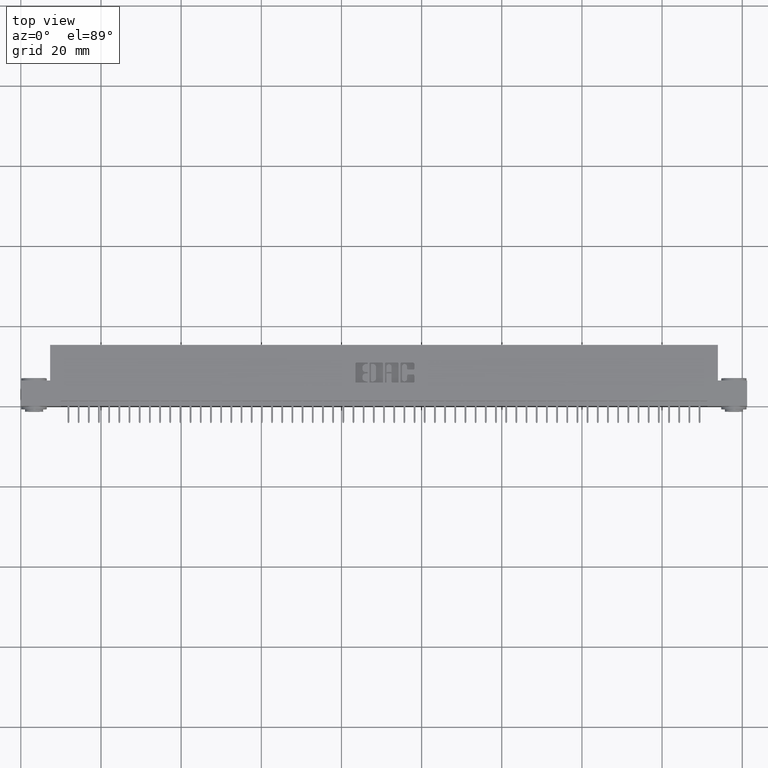
[diagram: clean part render]
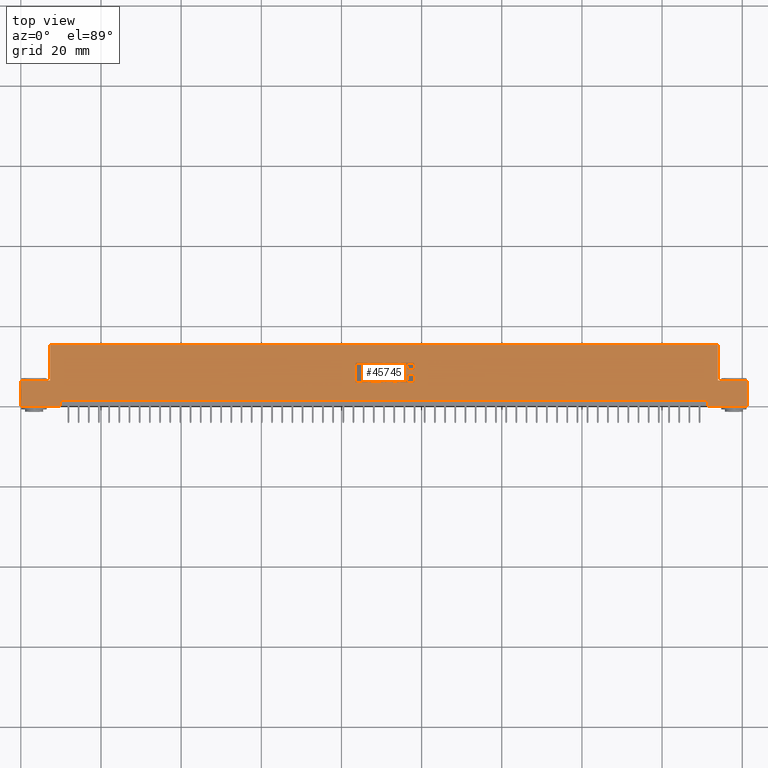
[diagram: same view with one face highlighted and labeled with its STEP entity id]
A machine part, top view. The second image highlights one B-rep face of the part: STEP entity #45745.
In plain terms, the highlighted planar face has unit normal (0, 0, -1).
Its self-contained STEP definition (entity closure, byte-faithful):
#61 = DIRECTION ( 'NONE',  ( -0.0000000000000000000, 0.0000000000000000000, 1.000000000000000000 ) ) ;
#263 = DIRECTION ( 'NONE',  ( -0.0000000000000000000, 0.0000000000000000000, 1.000000000000000000 ) ) ;
#282 = CARTESIAN_POINT ( 'NONE',  ( 3.854362961706166800, 0.3637718973050381200, 0.0000000000000000000 ) ) ;
#344 = DIRECTION ( 'NONE',  ( 1.000000000000000000, 0.0000000000000000000, 0.0000000000000000000 ) ) ;
#456 = DIRECTION ( 'NONE',  ( -1.000000000000000000, -0.0000000000000000000, -0.0000000000000000000 ) ) ;
#507 = CARTESIAN_POINT ( 'NONE',  ( 3.407504575677997600, 0.2337142671046474100, 0.0000000000000000000 ) ) ;
#638 = VECTOR ( 'NONE', #29442, 39.37007874015748100 ) ;
#708 = DIRECTION ( 'NONE',  ( -0.0000000000000000000, 0.0000000000000000000, 1.000000000000000000 ) ) ;
#750 = ORIENTED_EDGE ( 'NONE', *, *, #36887, .T. ) ;
#865 = LINE ( 'NONE', #2636, #2003 ) ;
#905 = CARTESIAN_POINT ( 'NONE',  ( 3.387137060005125400, 0.4094147637527351700, 0.0000000000000000000 ) ) ;
#930 = CARTESIAN_POINT ( 'NONE',  ( 3.400633606415414300, 0.2268432979619851900, 0.0000000000000000000 ) ) ;
#1045 = DIRECTION ( 'NONE',  ( -0.0000000000000000000, 0.0000000000000000000, 1.000000000000000000 ) ) ;
#1059 = VECTOR ( 'NONE', #41541, 39.37007874015748100 ) ;
#1074 = ORIENTED_EDGE ( 'NONE', *, *, #19920, .F. ) ;
#1199 = EDGE_CURVE ( 'NONE', #34497, #2968, #35497, .T. ) ;
#1378 = VERTEX_POINT ( 'NONE', #4594 ) ;
#1421 = VERTEX_POINT ( 'NONE', #27446 ) ;
#1533 = ORIENTED_EDGE ( 'NONE', *, *, #19184, .F. ) ;
#1551 = DIRECTION ( 'NONE',  ( 0.0000000000000000000, 1.000000000000000000, -0.0000000000000000000 ) ) ;
#1601 = VECTOR ( 'NONE', #46690, 39.37007874015748100 ) ;
#1739 = ORIENTED_EDGE ( 'NONE', *, *, #23221, .T. ) ;
#1814 = ORIENTED_EDGE ( 'NONE', *, *, #42954, .F. ) ;
#1840 = EDGE_CURVE ( 'NONE', #13526, #1995, #2253, .T. ) ;
#1867 = CARTESIAN_POINT ( 'NONE',  ( 3.728722383097458500, 0.0000000000000000000, 0.0000000000000000000 ) ) ;
#1991 = DIRECTION ( 'NONE',  ( -0.0000000000000000000, 0.0000000000000000000, 1.000000000000000000 ) ) ;
#1995 = VERTEX_POINT ( 'NONE', #29336 ) ;
#2003 = VECTOR ( 'NONE', #17631, 39.37007874015748100 ) ;
#2004 = AXIS2_PLACEMENT_3D ( 'NONE', #29803, #33635, #11718 ) ;
#2127 = VERTEX_POINT ( 'NONE', #19263 ) ;
#2157 = CARTESIAN_POINT ( 'NONE',  ( 3.728722383097458500, 0.2366589681657894100, 0.0000000000000000000 ) ) ;
#2188 = CARTESIAN_POINT ( 'NONE',  ( 3.433270709962976200, 0.2366589681657894100, 0.0000000000000000000 ) ) ;
#2252 = CARTESIAN_POINT ( 'NONE',  ( 3.576088711428330800, 0.2337142671046474100, 0.0000000000000000000 ) ) ;
#2253 = LINE ( 'NONE', #5438, #12591 ) ;
#2346 = DIRECTION ( 'NONE',  ( 1.000000000000000000, 0.0000000000000000000, 0.0000000000000000000 ) ) ;
#2600 = ORIENTED_EDGE ( 'NONE', *, *, #19246, .F. ) ;
#2607 = ORIENTED_EDGE ( 'NONE', *, *, #4201, .F. ) ;
#2636 = CARTESIAN_POINT ( 'NONE',  ( 3.642344485303985000, 0.0000000000000000000, 0.0000000000000000000 ) ) ;
#2660 = CIRCLE ( 'NONE', #19771, 0.009815670203803066700 ) ;
#2662 = VERTEX_POINT ( 'NONE', #13391 ) ;
#2750 = VERTEX_POINT ( 'NONE', #27527 ) ;
#2800 = CIRCLE ( 'NONE', #27188, 0.009815670203796511200 ) ;
#2919 = CARTESIAN_POINT ( 'NONE',  ( 3.632528815100188000, 0.3083133606535522500, 0.0000000000000000000 ) ) ;
#2930 = EDGE_CURVE ( 'NONE', #29691, #35080, #9292, .T. ) ;
#2958 = VERTEX_POINT ( 'NONE', #20774 ) ;
#2968 = VERTEX_POINT ( 'NONE', #16917 ) ;
#3098 = ORIENTED_EDGE ( 'NONE', *, *, #21425, .F. ) ;
#3278 = DIRECTION ( 'NONE',  ( 1.000000000000000000, 0.0000000000000000000, 0.0000000000000000000 ) ) ;
#3358 = CARTESIAN_POINT ( 'NONE',  ( 3.558911288571669400, 0.2366589681657894100, 0.0000000000000000000 ) ) ;
#3459 = VECTOR ( 'NONE', #20836, 39.37007874015748100 ) ;
#3528 = VERTEX_POINT ( 'NONE', #14143 ) ;
#3590 = DIRECTION ( 'NONE',  ( 1.000000000000000000, 0.0000000000000000000, 0.0000000000000000000 ) ) ;
#3592 = CARTESIAN_POINT ( 'NONE',  ( 3.728722383097458500, 0.4133410318342096200, 0.0000000000000000000 ) ) ;
#3632 = VECTOR ( 'NONE', #43935, 39.37007874015748100 ) ;
#3728 = DIRECTION ( 'NONE',  ( 1.000000000000000000, 0.0000000000000000000, 0.0000000000000000000 ) ) ;
#3748 = DIRECTION ( 'NONE',  ( 0.0000000000000000000, 1.000000000000000000, -0.0000000000000000000 ) ) ;
#4008 = CARTESIAN_POINT ( 'NONE',  ( 3.794978156973178900, 0.2668421540424524800, 0.0000000000000000000 ) ) ;
#4087 = VERTEX_POINT ( 'NONE', #32578 ) ;
#4115 = FACE_BOUND ( 'NONE', #27083, .T. ) ;
#4119 = VECTOR ( 'NONE', #38405, 39.37007874015748100 ) ;
#4139 = DIRECTION ( 'NONE',  ( -0.0000000000000000000, 0.0000000000000000000, 1.000000000000000000 ) ) ;
#4157 = DIRECTION ( 'NONE',  ( 1.000000000000000000, 0.0000000000000000000, 0.0000000000000000000 ) ) ;
#4201 = EDGE_CURVE ( 'NONE', #2750, #6957, #18948, .T. ) ;
#4303 = CARTESIAN_POINT ( 'NONE',  ( 3.599646319917450200, 0.3181290308573481200, 0.0000000000000000000 ) ) ;
#4433 = EDGE_CURVE ( 'NONE', #39258, #25636, #24059, .T. ) ;
#4544 = DIRECTION ( 'NONE',  ( 1.000000000000000000, 0.0000000000000000000, 0.0000000000000000000 ) ) ;
#4594 = CARTESIAN_POINT ( 'NONE',  ( 3.355726915352927900, 0.2867188862052000300, 0.0000000000000000000 ) ) ;
#4636 = CIRCLE ( 'NONE', #34025, 0.009815670203795418300 ) ;
#4706 = CARTESIAN_POINT ( 'NONE',  ( 3.549095618367827900, 0.4133410318342094500, 0.0000000000000000000 ) ) ;
#4715 = ORIENTED_EDGE ( 'NONE', *, *, #46082, .F. ) ;
#4783 = ORIENTED_EDGE ( 'NONE', *, *, #24651, .F. ) ;
#4917 = CARTESIAN_POINT ( 'NONE',  ( 3.738538053301299500, 0.4133410318342096200, 0.0000000000000000000 ) ) ;
#4959 = CARTESIAN_POINT ( 'NONE',  ( 0.0000000000000000000, 0.3063502266127570200, 0.0000000000000000000 ) ) ;
#4998 = EDGE_CURVE ( 'NONE', #20678, #27399, #8052, .T. ) ;
#5284 = VECTOR ( 'NONE', #24933, 39.37007874015748100 ) ;
#5320 = AXIS2_PLACEMENT_3D ( 'NONE', #26727, #37473, #19212 ) ;
#5355 = CARTESIAN_POINT ( 'NONE',  ( 3.400633606535310400, 0.3318709691426833300, 0.0000000000000000000 ) ) ;
#5438 = CARTESIAN_POINT ( 'NONE',  ( 0.0000000000000000000, 0.4231567020380505000, 0.0000000000000000000 ) ) ;
#5559 = DIRECTION ( 'NONE',  ( -0.0000000000000000000, 0.0000000000000000000, 1.000000000000000000 ) ) ;
#5682 = CARTESIAN_POINT ( 'NONE',  ( 3.742464321382818600, 0.3831578459575290500, 0.0000000000000000000 ) ) ;
#5727 = EDGE_CURVE ( 'NONE', #39915, #7146, #26854, .T. ) ;
#5733 = EDGE_CURVE ( 'NONE', #42203, #25636, #19417, .T. ) ;
#5994 = CARTESIAN_POINT ( 'NONE',  ( 3.355726915352909700, 0.3780046191005192500, 0.0000000000000000000 ) ) ;
#6125 = AXIS2_PLACEMENT_3D ( 'NONE', #18351, #8139, #40756 ) ;
#6139 = ORIENTED_EDGE ( 'NONE', *, *, #33425, .F. ) ;
#6273 = LINE ( 'NONE', #18317, #29173 ) ;
#6300 = VERTEX_POINT ( 'NONE', #30772 ) ;
#6397 = VERTEX_POINT ( 'NONE', #2252 ) ;
#6440 = AXIS2_PLACEMENT_3D ( 'NONE', #29677, #12638, #34266 ) ;
#6476 = LINE ( 'NONE', #8380, #17949 ) ;
#6524 = ORIENTED_EDGE ( 'NONE', *, *, #18358, .F. ) ;
#6681 = CARTESIAN_POINT ( 'NONE',  ( 3.296342110619918200, 0.2268432979619844400, 0.0000000000000000000 ) ) ;
#6722 = EDGE_CURVE ( 'NONE', #9240, #12139, #7870, .T. ) ;
#6851 = ORIENTED_EDGE ( 'NONE', *, *, #27960, .T. ) ;
#6854 = VERTEX_POINT ( 'NONE', #930 ) ;
#6935 = AXIS2_PLACEMENT_3D ( 'NONE', #36313, #39351, #10371 ) ;
#6957 = VERTEX_POINT ( 'NONE', #13241 ) ;
#7042 = VECTOR ( 'NONE', #19062, 39.37007874015748100 ) ;
#7060 = VERTEX_POINT ( 'NONE', #14019 ) ;
#7095 = AXIS2_PLACEMENT_3D ( 'NONE', #22678, #44703, #8121 ) ;
#7143 = VECTOR ( 'NONE', #10275, 39.37007874015748100 ) ;
#7146 = VERTEX_POINT ( 'NONE', #46332 ) ;
#7342 = CARTESIAN_POINT ( 'NONE',  ( 6.847499999999999300, 0.2500000000000000000, 0.0000000000000000000 ) ) ;
#7548 = CARTESIAN_POINT ( 'NONE',  ( 3.576088711428330800, 0.4133410318342096200, 0.0000000000000000000 ) ) ;
#7565 = CARTESIAN_POINT ( 'NONE',  ( 6.742500000000000600, 0.05000000000000000300, 0.0000000000000000000 ) ) ;
#7610 = EDGE_CURVE ( 'NONE', #44977, #19190, #27175, .T. ) ;
#7722 = CARTESIAN_POINT ( 'NONE',  ( 3.400633606535351300, 0.4094147637527351700, 0.0000000000000000000 ) ) ;
#7740 = LINE ( 'NONE', #11262, #35777 ) ;
#7755 = ORIENTED_EDGE ( 'NONE', *, *, #42809, .F. ) ;
#7870 = LINE ( 'NONE', #25923, #26152 ) ;
#7971 = ORIENTED_EDGE ( 'NONE', *, *, #36649, .F. ) ;
#8029 = AXIS2_PLACEMENT_3D ( 'NONE', #30486, #263, #344 ) ;
#8052 = CIRCLE ( 'NONE', #39601, 0.009815670203805252500 ) ;
#8100 = EDGE_CURVE ( 'NONE', #22500, #34528, #23407, .T. ) ;
#8121 = DIRECTION ( 'NONE',  ( 1.000000000000000000, 0.0000000000000000000, 0.0000000000000000000 ) ) ;
#8127 = CARTESIAN_POINT ( 'NONE',  ( 3.407504575677973600, 0.3250000000000198300, 0.0000000000000000000 ) ) ;
#8139 = DIRECTION ( 'NONE',  ( 0.0000000000000000000, 0.0000000000000000000, -1.000000000000000000 ) ) ;
#8206 = LINE ( 'NONE', #23067, #7042 ) ;
#8380 = CARTESIAN_POINT ( 'NONE',  ( 0.0000000000000000000, 0.4231567020380505000, 0.0000000000000000000 ) ) ;
#8403 = DIRECTION ( 'NONE',  ( -0.0000000000000000000, 0.0000000000000000000, 1.000000000000000000 ) ) ;
#8521 = EDGE_CURVE ( 'NONE', #40507, #39677, #35972, .T. ) ;
#8714 = LINE ( 'NONE', #7342, #9864 ) ;
#8721 = EDGE_CURVE ( 'NONE', #19003, #12240, #32464, .T. ) ;
#8724 = FACE_BOUND ( 'NONE', #16727, .T. ) ;
#9071 = VERTEX_POINT ( 'NONE', #47250 ) ;
#9128 = DIRECTION ( 'NONE',  ( -1.000000000000000000, 0.0000000000000000000, 0.0000000000000000000 ) ) ;
#9136 = AXIS2_PLACEMENT_3D ( 'NONE', #17775, #21325, #43841 ) ;
#9190 = EDGE_CURVE ( 'NONE', #19166, #38354, #2660, .T. ) ;
#9240 = VERTEX_POINT ( 'NONE', #7565 ) ;
#9277 = CIRCLE ( 'NONE', #5320, 0.009815670203806891800 ) ;
#9292 = CIRCLE ( 'NONE', #24756, 0.009815670203806891800 ) ;
#9400 = DIRECTION ( 'NONE',  ( 1.000000000000000000, 0.0000000000000000000, 0.0000000000000000000 ) ) ;
#9422 = CARTESIAN_POINT ( 'NONE',  ( 0.0000000000000000000, 0.0000000000000000000, 0.0000000000000000000 ) ) ;
#9491 = CIRCLE ( 'NONE', #14322, 0.009815670203840221000 ) ;
#9513 = DIRECTION ( 'NONE',  ( 1.000000000000000000, -0.0000000000000000000, -0.0000000000000000000 ) ) ;
#9676 = AXIS2_PLACEMENT_3D ( 'NONE', #39352, #46183, #31507 ) ;
#9795 = ORIENTED_EDGE ( 'NONE', *, *, #43316, .F. ) ;
#9835 = CIRCLE ( 'NONE', #24954, 0.03141014465215583000 ) ;
#9864 = VECTOR ( 'NONE', #22221, 39.37007874015748100 ) ;
#9881 = DIRECTION ( 'NONE',  ( -0.0000000000000000000, 0.0000000000000000000, 1.000000000000000000 ) ) ;
#9938 = LINE ( 'NONE', #25409, #3632 ) ;
#9994 = VECTOR ( 'NONE', #14614, 39.37007874015748100 ) ;
#10196 = VECTOR ( 'NONE', #19902, 39.37007874015748100 ) ;
#10270 = CIRCLE ( 'NONE', #22106, 0.009815670203806345400 ) ;
#10275 = DIRECTION ( 'NONE',  ( -1.000000000000000000, -1.189163988687022500E-013, 0.0000000000000000000 ) ) ;
#10371 = DIRECTION ( 'NONE',  ( 1.000000000000000000, 0.0000000000000000000, 0.0000000000000000000 ) ) ;
#10382 = ORIENTED_EDGE ( 'NONE', *, *, #11108, .F. ) ;
#10505 = VERTEX_POINT ( 'NONE', #10627 ) ;
#10627 = CARTESIAN_POINT ( 'NONE',  ( 0.2874999999999999800, 0.5999999999999999800, 0.0000000000000000000 ) ) ;
#10655 = VERTEX_POINT ( 'NONE', #33340 ) ;
#10868 = EDGE_CURVE ( 'NONE', #29020, #26460, #6476, .T. ) ;
#11056 = VECTOR ( 'NONE', #39193, 39.37007874015748100 ) ;
#11108 = EDGE_CURVE ( 'NONE', #23498, #32421, #40225, .T. ) ;
#11135 = ORIENTED_EDGE ( 'NONE', *, *, #4433, .F. ) ;
#11188 = DIRECTION ( 'NONE',  ( 1.000000000000000000, 0.0000000000000000000, 0.0000000000000000000 ) ) ;
#11229 = AXIS2_PLACEMENT_3D ( 'NONE', #43991, #32348, #36050 ) ;
#11262 = CARTESIAN_POINT ( 'NONE',  ( 0.0000000000000000000, 0.5999999999999999800, 0.0000000000000000000 ) ) ;
#11531 = CARTESIAN_POINT ( 'NONE',  ( -0.0000000000000000000, 0.3181290308573562800, 0.0000000000000000000 ) ) ;
#11639 = EDGE_CURVE ( 'NONE', #27399, #23843, #13273, .T. ) ;
#11646 = EDGE_CURVE ( 'NONE', #6854, #24194, #34502, .T. ) ;
#11671 = CIRCLE ( 'NONE', #24631, 0.009815670203787768200 ) ;
#11673 = ORIENTED_EDGE ( 'NONE', *, *, #31550, .F. ) ;
#11688 = VECTOR ( 'NONE', #35366, 39.37007874015748100 ) ;
#11718 = DIRECTION ( 'NONE',  ( 1.000000000000000000, 0.0000000000000000000, 0.0000000000000000000 ) ) ;
#11971 = LINE ( 'NONE', #37283, #25699 ) ;
#12139 = VERTEX_POINT ( 'NONE', #27141 ) ;
#12240 = VERTEX_POINT ( 'NONE', #20747 ) ;
#12382 = VECTOR ( 'NONE', #14233, 39.37007874015748100 ) ;
#12502 = EDGE_CURVE ( 'NONE', #4087, #19166, #35539, .T. ) ;
#12548 = VERTEX_POINT ( 'NONE', #45669 ) ;
#12591 = VECTOR ( 'NONE', #9128, 39.37007874015748100 ) ;
#12638 = DIRECTION ( 'NONE',  ( -0.0000000000000000000, 0.0000000000000000000, 1.000000000000000000 ) ) ;
#12663 = ORIENTED_EDGE ( 'NONE', *, *, #40806, .F. ) ;
#12737 = DIRECTION ( 'NONE',  ( 1.000000000000000000, 0.0000000000000000000, 0.0000000000000000000 ) ) ;
#12758 = DIRECTION ( 'NONE',  ( 0.0000000000000000000, -1.000000000000000000, 0.0000000000000000000 ) ) ;
#12814 = CARTESIAN_POINT ( 'NONE',  ( -0.0000000000000000000, 0.3539562271012330900, 0.0000000000000000000 ) ) ;
#12861 = DIRECTION ( 'NONE',  ( -0.0000000000000000000, 0.0000000000000000000, 1.000000000000000000 ) ) ;
#13021 = VERTEX_POINT ( 'NONE', #33211 ) ;
#13175 = CARTESIAN_POINT ( 'NONE',  ( 3.549095618367896300, 0.4231567020380505000, 0.0000000000000000000 ) ) ;
#13187 = EDGE_CURVE ( 'NONE', #36422, #16190, #2800, .T. ) ;
#13219 = LINE ( 'NONE', #40585, #35575 ) ;
#13241 = CARTESIAN_POINT ( 'NONE',  ( 3.400633606535351300, 0.4231567020380321800, 0.0000000000000000000 ) ) ;
#13273 = LINE ( 'NONE', #43461, #5284 ) ;
#13391 = CARTESIAN_POINT ( 'NONE',  ( 3.701729290037013800, 0.4231567020380060400, 0.0000000000000000000 ) ) ;
#13437 = DIRECTION ( 'NONE',  ( 1.000000000000000000, 0.0000000000000000000, 0.0000000000000000000 ) ) ;
#13526 = VERTEX_POINT ( 'NONE', #43048 ) ;
#13580 = CIRCLE ( 'NONE', #2004, 0.006870969142663458500 ) ;
#13640 = DIRECTION ( 'NONE',  ( 1.000000000000000000, 0.0000000000000000000, 0.0000000000000000000 ) ) ;
#13872 = LINE ( 'NONE', #24323, #11056 ) ;
#14019 = CARTESIAN_POINT ( 'NONE',  ( 3.794978156973166000, 0.3637718973050446700, 0.0000000000000000000 ) ) ;
#14143 = CARTESIAN_POINT ( 'NONE',  ( 6.847499999999999300, 0.2500000000000000000, 0.0000000000000000000 ) ) ;
#14163 = DIRECTION ( 'NONE',  ( -0.0000000000000000000, 0.0000000000000000000, 1.000000000000000000 ) ) ;
#14184 = VECTOR ( 'NONE', #4157, 39.37007874015748100 ) ;
#14226 = AXIS2_PLACEMENT_3D ( 'NONE', #34555, #23545, #19839 ) ;
#14233 = DIRECTION ( 'NONE',  ( 1.000000000000000000, 0.0000000000000000000, 0.0000000000000000000 ) ) ;
#14283 = EDGE_CURVE ( 'NONE', #12139, #34528, #11971, .T. ) ;
#14322 = AXIS2_PLACEMENT_3D ( 'NONE', #40395, #61, #3590 ) ;
#14398 = EDGE_CURVE ( 'NONE', #42638, #30821, #44014, .T. ) ;
#14443 = ORIENTED_EDGE ( 'NONE', *, *, #28110, .T. ) ;
#14561 = ORIENTED_EDGE ( 'NONE', *, *, #19241, .T. ) ;
#14579 = DIRECTION ( 'NONE',  ( 1.000000000000000000, 0.0000000000000000000, 0.0000000000000000000 ) ) ;
#14614 = DIRECTION ( 'NONE',  ( 0.0000000000000000000, -1.000000000000000000, 0.0000000000000000000 ) ) ;
#14700 = CARTESIAN_POINT ( 'NONE',  ( 3.738538053301265300, 0.2366589681657894100, 0.0000000000000000000 ) ) ;
#14736 = DIRECTION ( 'NONE',  ( -0.0000000000000000000, 0.0000000000000000000, 1.000000000000000000 ) ) ;
#14794 = VERTEX_POINT ( 'NONE', #44052 ) ;
#14926 = ORIENTED_EDGE ( 'NONE', *, *, #2930, .F. ) ;
#14951 = ORIENTED_EDGE ( 'NONE', *, *, #20940, .F. ) ;
#15004 = PLANE ( 'NONE',  #6125 ) ;
#15196 = DIRECTION ( 'NONE',  ( 1.000000000000000000, 0.0000000000000000000, 0.0000000000000000000 ) ) ;
#15214 = CARTESIAN_POINT ( 'NONE',  ( 3.794978156973178900, 0.2965345564089681400, 0.0000000000000000000 ) ) ;
#15228 = ORIENTED_EDGE ( 'NONE', *, *, #9190, .T. ) ;
#15343 = AXIS2_PLACEMENT_3D ( 'NONE', #19963, #41718, #12737 ) ;
#15420 = CARTESIAN_POINT ( 'NONE',  ( 3.742464321382818600, 0.2668421540424524800, 0.0000000000000000000 ) ) ;
#15454 = LINE ( 'NONE', #38918, #37253 ) ;
#15461 = CIRCLE ( 'NONE', #15343, 0.02625691779517995400 ) ;
#15504 = EDGE_CURVE ( 'NONE', #7060, #10655, #28496, .T. ) ;
#15522 = VECTOR ( 'NONE', #43295, 39.37007874015748100 ) ;
#15699 = CARTESIAN_POINT ( 'NONE',  ( 0.3924999999999996800, 0.0000000000000000000, 0.0000000000000000000 ) ) ;
#15778 = CARTESIAN_POINT ( 'NONE',  ( -0.0000000000000000000, 0.2268432979619826600, 0.0000000000000000000 ) ) ;
#15808 = VECTOR ( 'NONE', #26263, 39.37007874015748100 ) ;
#15820 = CIRCLE ( 'NONE', #9136, 0.009815670203805798900 ) ;
#15829 = ORIENTED_EDGE ( 'NONE', *, *, #13187, .F. ) ;
#16041 = CIRCLE ( 'NONE', #47172, 0.009815670203806891800 ) ;
#16083 = VECTOR ( 'NONE', #22169, 39.37007874015748100 ) ;
#16138 = CARTESIAN_POINT ( 'NONE',  ( 3.585904381632127400, 0.4231567020380060400, 0.0000000000000000000 ) ) ;
#16172 = EDGE_CURVE ( 'NONE', #35080, #2958, #37023, .T. ) ;
#16190 = VERTEX_POINT ( 'NONE', #7548 ) ;
#16403 = CARTESIAN_POINT ( 'NONE',  ( -1.123269580619305600E-014, 0.3181290308572210000, 0.0000000000000000000 ) ) ;
#16462 = ORIENTED_EDGE ( 'NONE', *, *, #15504, .F. ) ;
#16556 = EDGE_CURVE ( 'NONE', #40728, #21916, #40396, .T. ) ;
#16630 = DIRECTION ( 'NONE',  ( 0.0000000000000000000, 1.000000000000000000, -0.0000000000000000000 ) ) ;
#16689 = LINE ( 'NONE', #31431, #34441 ) ;
#16727 = EDGE_LOOP ( 'NONE', ( #1739, #4715, #34127, #30519, #43202, #38930, #14443, #45341, #19546, #15228, #42198, #41219, #18252, #15829 ) ) ;
#16762 = EDGE_CURVE ( 'NONE', #24194, #23724, #36981, .T. ) ;
#16777 = CARTESIAN_POINT ( 'NONE',  ( 3.558911288571669400, 0.0000000000000000000, 0.0000000000000000000 ) ) ;
#16795 = CIRCLE ( 'NONE', #42283, 0.006870969142657995000 ) ;
#16917 = CARTESIAN_POINT ( 'NONE',  ( 3.711544960240806400, 0.2366589681657803300, 0.0000000000000000000 ) ) ;
#17031 = CARTESIAN_POINT ( 'NONE',  ( 3.864178631909972200, 0.4133410318341942900, 0.0000000000000000000 ) ) ;
#17149 = DIRECTION ( 'NONE',  ( 1.000000000000000000, 0.0000000000000000000, 0.0000000000000000000 ) ) ;
#17163 = VERTEX_POINT ( 'NONE', #5994 ) ;
#17391 = LINE ( 'NONE', #24153, #19116 ) ;
#17421 = VECTOR ( 'NONE', #42146, 39.37007874015748100 ) ;
#17597 = CARTESIAN_POINT ( 'NONE',  ( 0.0000000000000000000, 0.3318709691426833300, 0.0000000000000000000 ) ) ;
#17631 = DIRECTION ( 'NONE',  ( 0.0000000000000000000, 1.000000000000000000, -0.0000000000000000000 ) ) ;
#17775 = CARTESIAN_POINT ( 'NONE',  ( 3.296342110619922200, 0.2366589681657894100, 0.0000000000000000000 ) ) ;
#17825 = LINE ( 'NONE', #11531, #40752 ) ;
#17949 = VECTOR ( 'NONE', #34601, 39.37007874015748100 ) ;
#18011 = LINE ( 'NONE', #46768, #21478 ) ;
#18018 = DIRECTION ( 'NONE',  ( 1.000000000000000000, 7.203446383881635600E-015, 0.0000000000000000000 ) ) ;
#18054 = VECTOR ( 'NONE', #16630, 39.37007874015748100 ) ;
#18252 = ORIENTED_EDGE ( 'NONE', *, *, #40025, .T. ) ;
#18317 = CARTESIAN_POINT ( 'NONE',  ( 3.355726915352909700, 0.0000000000000000000, 0.0000000000000000000 ) ) ;
#18351 = CARTESIAN_POINT ( 'NONE',  ( 0.0000000000000000000, 0.5999999999999999800, 0.0000000000000000000 ) ) ;
#18358 = EDGE_CURVE ( 'NONE', #6300, #44977, #11671, .T. ) ;
#18376 = EDGE_CURVE ( 'NONE', #45880, #2968, #17391, .T. ) ;
#18413 = ORIENTED_EDGE ( 'NONE', *, *, #4998, .F. ) ;
#18431 = ORIENTED_EDGE ( 'NONE', *, *, #5727, .F. ) ;
#18453 = VERTEX_POINT ( 'NONE', #28992 ) ;
#18498 = ORIENTED_EDGE ( 'NONE', *, *, #5733, .T. ) ;
#18526 = DIRECTION ( 'NONE',  ( -0.0000000000000000000, -1.000000000000000000, -0.0000000000000000000 ) ) ;
#18557 = CARTESIAN_POINT ( 'NONE',  ( 3.599646319917450200, 0.3083133606535450300, 0.0000000000000000000 ) ) ;
#18569 = ORIENTED_EDGE ( 'NONE', *, *, #27410, .T. ) ;
#18724 = DIRECTION ( 'NONE',  ( 1.000000000000000000, 0.0000000000000000000, 0.0000000000000000000 ) ) ;
#18770 = CIRCLE ( 'NONE', #29587, 0.009815670203797057700 ) ;
#18912 = ORIENTED_EDGE ( 'NONE', *, *, #29888, .F. ) ;
#18948 = CIRCLE ( 'NONE', #7095, 0.006870969142648706400 ) ;
#18994 = DIRECTION ( 'NONE',  ( -0.0000000000000000000, -1.000000000000000000, -0.0000000000000000000 ) ) ;
#19003 = VERTEX_POINT ( 'NONE', #3358 ) ;
#19030 = EDGE_CURVE ( 'NONE', #9240, #39282, #19072, .T. ) ;
#19062 = DIRECTION ( 'NONE',  ( -1.000000000000000000, 0.0000000000000000000, 0.0000000000000000000 ) ) ;
#19072 = LINE ( 'NONE', #47308, #30502 ) ;
#19116 = VECTOR ( 'NONE', #12758, 39.37007874015748100 ) ;
#19126 = ORIENTED_EDGE ( 'NONE', *, *, #6722, .F. ) ;
#19158 = CARTESIAN_POINT ( 'NONE',  ( 3.711544960240806400, 0.4133410318342004600, 0.0000000000000000000 ) ) ;
#19166 = VERTEX_POINT ( 'NONE', #4303 ) ;
#19184 = EDGE_CURVE ( 'NONE', #13021, #9071, #34494, .T. ) ;
#19190 = VERTEX_POINT ( 'NONE', #4008 ) ;
#19212 = DIRECTION ( 'NONE',  ( 1.000000000000000000, 0.0000000000000000000, 0.0000000000000000000 ) ) ;
#19241 = EDGE_CURVE ( 'NONE', #39929, #47139, #40777, .T. ) ;
#19246 = EDGE_CURVE ( 'NONE', #2958, #19003, #9277, .T. ) ;
#19263 = CARTESIAN_POINT ( 'NONE',  ( 3.864178631909940300, 0.2366589681657824400, 0.0000000000000000000 ) ) ;
#19341 = DIRECTION ( 'NONE',  ( -0.0000000000000000000, 0.0000000000000000000, 1.000000000000000000 ) ) ;
#19392 = EDGE_CURVE ( 'NONE', #39282, #18453, #21320, .T. ) ;
#19417 = CIRCLE ( 'NONE', #43567, 0.02625691779517339700 ) ;
#19546 = ORIENTED_EDGE ( 'NONE', *, *, #12502, .T. ) ;
#19631 = EDGE_CURVE ( 'NONE', #39929, #1378, #27020, .T. ) ;
#19669 = ORIENTED_EDGE ( 'NONE', *, *, #41424, .F. ) ;
#19771 = AXIS2_PLACEMENT_3D ( 'NONE', #18557, #40639, #18724 ) ;
#19839 = DIRECTION ( 'NONE',  ( 1.000000000000000000, 0.0000000000000000000, 0.0000000000000000000 ) ) ;
#19845 = EDGE_CURVE ( 'NONE', #20326, #1378, #9835, .T. ) ;
#19902 = DIRECTION ( 'NONE',  ( 1.000000000000000000, 0.0000000000000000000, 0.0000000000000000000 ) ) ;
#19920 = EDGE_CURVE ( 'NONE', #42872, #18453, #13219, .T. ) ;
#19963 = CARTESIAN_POINT ( 'NONE',  ( 3.768721239177998500, 0.2668421540424524800, 0.0000000000000000000 ) ) ;
#20326 = VERTEX_POINT ( 'NONE', #33212 ) ;
#20571 = DIRECTION ( 'NONE',  ( 1.000000000000000000, 0.0000000000000000000, 0.0000000000000000000 ) ) ;
#20588 = CARTESIAN_POINT ( 'NONE',  ( 3.701729290037011600, 0.4133410318342098400, 0.0000000000000000000 ) ) ;
#20678 = VERTEX_POINT ( 'NONE', #28039 ) ;
#20747 = CARTESIAN_POINT ( 'NONE',  ( 3.558911288571669400, 0.4133410318342096200, 0.0000000000000000000 ) ) ;
#20769 = FACE_BOUND ( 'NONE', #25115, .T. ) ;
#20774 = CARTESIAN_POINT ( 'NONE',  ( 3.549095618367861700, 0.2268432979619826600, 0.0000000000000000000 ) ) ;
#20836 = DIRECTION ( 'NONE',  ( -1.000000000000000000, 0.0000000000000000000, 0.0000000000000000000 ) ) ;
#20940 = EDGE_CURVE ( 'NONE', #23724, #47139, #40297, .T. ) ;
#21022 = ORIENTED_EDGE ( 'NONE', *, *, #47028, .F. ) ;
#21052 = ORIENTED_EDGE ( 'NONE', *, *, #40471, .F. ) ;
#21100 = ORIENTED_EDGE ( 'NONE', *, *, #16762, .F. ) ;
#21146 = ORIENTED_EDGE ( 'NONE', *, *, #22108, .F. ) ;
#21170 = CARTESIAN_POINT ( 'NONE',  ( 3.423455039759169000, 0.2366589681657894100, 0.0000000000000000000 ) ) ;
#21221 = EDGE_CURVE ( 'NONE', #37795, #6300, #42159, .T. ) ;
#21255 = AXIS2_PLACEMENT_3D ( 'NONE', #39131, #12861, #20571 ) ;
#21320 = LINE ( 'NONE', #9422, #4119 ) ;
#21325 = DIRECTION ( 'NONE',  ( -0.0000000000000000000, 0.0000000000000000000, 1.000000000000000000 ) ) ;
#21425 = EDGE_CURVE ( 'NONE', #39677, #2750, #32435, .T. ) ;
#21478 = VECTOR ( 'NONE', #18018, 39.37007874015748100 ) ;
#21486 = LINE ( 'NONE', #44168, #9994 ) ;
#21643 = DIRECTION ( 'NONE',  ( 1.000000000000000000, 0.0000000000000000000, 0.0000000000000000000 ) ) ;
#21793 = CARTESIAN_POINT ( 'NONE',  ( 3.589830649713647000, 0.2337142671046474100, 0.0000000000000000000 ) ) ;
#21809 = DIRECTION ( 'NONE',  ( 0.0000000000000000000, 1.000000000000000000, -0.0000000000000000000 ) ) ;
#21875 = LINE ( 'NONE', #17597, #3459 ) ;
#21916 = VERTEX_POINT ( 'NONE', #24097 ) ;
#21920 = EDGE_CURVE ( 'NONE', #26460, #25677, #26669, .T. ) ;
#21956 = ORIENTED_EDGE ( 'NONE', *, *, #8100, .T. ) ;
#22106 = AXIS2_PLACEMENT_3D ( 'NONE', #32407, #14163, #39771 ) ;
#22108 = EDGE_CURVE ( 'NONE', #42203, #7060, #21486, .T. ) ;
#22112 = DIRECTION ( 'NONE',  ( -1.000000000000000000, 0.0000000000000000000, 0.0000000000000000000 ) ) ;
#22169 = DIRECTION ( 'NONE',  ( 1.000000000000000000, 0.0000000000000000000, 0.0000000000000000000 ) ) ;
#22221 = DIRECTION ( 'NONE',  ( -0.0000000000000000000, 1.000000000000000000, -0.0000000000000000000 ) ) ;
#22344 = CARTESIAN_POINT ( 'NONE',  ( 6.742500000000000600, 0.0000000000000000000, 0.0000000000000000000 ) ) ;
#22404 = ORIENTED_EDGE ( 'NONE', *, *, #23437, .T. ) ;
#22423 = CARTESIAN_POINT ( 'NONE',  ( 3.864178631909940300, 0.2965345564089699200, 0.0000000000000000000 ) ) ;
#22431 = CIRCLE ( 'NONE', #21255, 0.009815670203822736800 ) ;
#22485 = FACE_BOUND ( 'NONE', #36495, .T. ) ;
#22494 = ORIENTED_EDGE ( 'NONE', *, *, #7610, .F. ) ;
#22500 = VERTEX_POINT ( 'NONE', #30446 ) ;
#22678 = CARTESIAN_POINT ( 'NONE',  ( 3.400633606535351300, 0.4162857328953857300, 0.0000000000000000000 ) ) ;
#22907 = VERTEX_POINT ( 'NONE', #22423 ) ;
#23067 = CARTESIAN_POINT ( 'NONE',  ( 0.0000000000000000000, 0.2268432979619841000, 0.0000000000000000000 ) ) ;
#23125 = DIRECTION ( 'NONE',  ( 1.000000000000000000, 0.0000000000000000000, 0.0000000000000000000 ) ) ;
#23171 = ORIENTED_EDGE ( 'NONE', *, *, #19631, .F. ) ;
#23221 = EDGE_CURVE ( 'NONE', #36422, #2662, #13872, .T. ) ;
#23331 = LINE ( 'NONE', #12814, #38203 ) ;
#23407 = LINE ( 'NONE', #45770, #10196 ) ;
#23437 = EDGE_CURVE ( 'NONE', #3528, #43274, #8714, .T. ) ;
#23447 = ORIENTED_EDGE ( 'NONE', *, *, #30883, .F. ) ;
#23498 = VERTEX_POINT ( 'NONE', #44230 ) ;
#23505 = ORIENTED_EDGE ( 'NONE', *, *, #19030, .T. ) ;
#23545 = DIRECTION ( 'NONE',  ( -0.0000000000000000000, 0.0000000000000000000, 1.000000000000000000 ) ) ;
#23724 = VERTEX_POINT ( 'NONE', #45644 ) ;
#23843 = VERTEX_POINT ( 'NONE', #17031 ) ;
#23984 = VERTEX_POINT ( 'NONE', #36246 ) ;
#24059 = LINE ( 'NONE', #43681, #32614 ) ;
#24065 = CIRCLE ( 'NONE', #31613, 0.009815670203841313900 ) ;
#24097 = CARTESIAN_POINT ( 'NONE',  ( 3.387137060005084100, 0.3318709691426833300, 0.0000000000000000000 ) ) ;
#24118 = CARTESIAN_POINT ( 'NONE',  ( 3.423455039759169000, 0.4133410318342096200, 0.0000000000000000000 ) ) ;
#24153 = CARTESIAN_POINT ( 'NONE',  ( 3.711544960240806400, 0.0000000000000000000, 0.0000000000000000000 ) ) ;
#24169 = EDGE_CURVE ( 'NONE', #1421, #12548, #30979, .T. ) ;
#24194 = VERTEX_POINT ( 'NONE', #507 ) ;
#24282 = AXIS2_PLACEMENT_3D ( 'NONE', #31637, #35179, #9400 ) ;
#24323 = CARTESIAN_POINT ( 'NONE',  ( -0.0000000000000000000, 0.4231567020380060400, 0.0000000000000000000 ) ) ;
#24544 = CARTESIAN_POINT ( 'NONE',  ( 6.847499999999999300, 0.5999999999999999800, 0.0000000000000000000 ) ) ;
#24567 = LINE ( 'NONE', #43041, #1601 ) ;
#24631 = AXIS2_PLACEMENT_3D ( 'NONE', #42039, #5559, #34866 ) ;
#24651 = EDGE_CURVE ( 'NONE', #46063, #21916, #21875, .T. ) ;
#24756 = AXIS2_PLACEMENT_3D ( 'NONE', #2188, #9881, #2346 ) ;
#24826 = VERTEX_POINT ( 'NONE', #21793 ) ;
#24933 = DIRECTION ( 'NONE',  ( 0.0000000000000000000, 1.000000000000000000, -0.0000000000000000000 ) ) ;
#24954 = AXIS2_PLACEMENT_3D ( 'NONE', #26351, #708, #33244 ) ;
#25115 = EDGE_LOOP ( 'NONE', ( #1814, #37783, #2600, #37123, #14926, #19669, #34945, #36774 ) ) ;
#25229 = DIRECTION ( 'NONE',  ( -0.0000000000000000000, 0.0000000000000000000, 1.000000000000000000 ) ) ;
#25364 = ORIENTED_EDGE ( 'NONE', *, *, #11639, .F. ) ;
#25409 = CARTESIAN_POINT ( 'NONE',  ( 0.0000000000000000000, 0.5999999999999999800, 0.0000000000000000000 ) ) ;
#25421 = CARTESIAN_POINT ( 'NONE',  ( 3.589830649713647000, 0.3083133606535450300, 0.0000000000000000000 ) ) ;
#25636 = VERTEX_POINT ( 'NONE', #5682 ) ;
#25677 = VERTEX_POINT ( 'NONE', #24118 ) ;
#25699 = VECTOR ( 'NONE', #18526, 39.37007874015748100 ) ;
#25767 = DIRECTION ( 'NONE',  ( 1.000000000000000000, 0.0000000000000000000, 0.0000000000000000000 ) ) ;
#25779 = DIRECTION ( 'NONE',  ( 0.0000000000000000000, -1.000000000000000000, 0.0000000000000000000 ) ) ;
#25877 = LINE ( 'NONE', #40802, #638 ) ;
#25923 = CARTESIAN_POINT ( 'NONE',  ( 0.3924999999999996800, 0.05000000000000000300, 0.0000000000000000000 ) ) ;
#26043 = ORIENTED_EDGE ( 'NONE', *, *, #29954, .F. ) ;
#26152 = VECTOR ( 'NONE', #456, 39.37007874015748100 ) ;
#26263 = DIRECTION ( 'NONE',  ( -1.000000000000000000, 0.0000000000000000000, 0.0000000000000000000 ) ) ;
#26351 = CARTESIAN_POINT ( 'NONE',  ( 3.387137060005084100, 0.2867188862052000300, 0.0000000000000000000 ) ) ;
#26460 = VERTEX_POINT ( 'NONE', #40197 ) ;
#26669 = CIRCLE ( 'NONE', #32665, 0.009815670203840767500 ) ;
#26727 = CARTESIAN_POINT ( 'NONE',  ( 3.549095618367861700, 0.2366589681657894100, 0.0000000000000000000 ) ) ;
#26854 = LINE ( 'NONE', #15778, #1059 ) ;
#27020 = LINE ( 'NONE', #35984, #15522 ) ;
#27083 = EDGE_LOOP ( 'NONE', ( #6851, #47219, #29973, #4783, #29455, #10382, #18912, #28920, #23171, #14561, #14951, #21100, #41385, #40355, #9795, #1533, #23447, #21022, #2607, #3098, #28784 ) ) ;
#27141 = CARTESIAN_POINT ( 'NONE',  ( 0.3924999999999996800, 0.05000000000000000300, 0.0000000000000000000 ) ) ;
#27175 = LINE ( 'NONE', #27745, #17421 ) ;
#27188 = AXIS2_PLACEMENT_3D ( 'NONE', #34156, #8403, #23125 ) ;
#27399 = VERTEX_POINT ( 'NONE', #34214 ) ;
#27410 = EDGE_CURVE ( 'NONE', #39258, #19190, #15461, .T. ) ;
#27442 = DIRECTION ( 'NONE',  ( -0.0000000000000000000, 0.0000000000000000000, 1.000000000000000000 ) ) ;
#27446 = CARTESIAN_POINT ( 'NONE',  ( 0.0000000000000000000, 0.2500000000000000000, 0.0000000000000000000 ) ) ;
#27527 = CARTESIAN_POINT ( 'NONE',  ( 3.407504575677999800, 0.4162857328953857300, 0.0000000000000000000 ) ) ;
#27572 = ORIENTED_EDGE ( 'NONE', *, *, #1840, .F. ) ;
#27745 = CARTESIAN_POINT ( 'NONE',  ( 3.794978156973178900, 0.0000000000000000000, 0.0000000000000000000 ) ) ;
#27863 = VERTEX_POINT ( 'NONE', #3592 ) ;
#27960 = EDGE_CURVE ( 'NONE', #40507, #17163, #31791, .T. ) ;
#28009 = DIRECTION ( 'NONE',  ( -0.0000000000000000000, 1.000000000000000000, -0.0000000000000000000 ) ) ;
#28039 = CARTESIAN_POINT ( 'NONE',  ( 3.854362961706166800, 0.3539562271012330300, 0.0000000000000000000 ) ) ;
#28110 = EDGE_CURVE ( 'NONE', #42638, #23984, #865, .T. ) ;
#28390 = ORIENTED_EDGE ( 'NONE', *, *, #14283, .F. ) ;
#28481 = EDGE_CURVE ( 'NONE', #30349, #6854, #18011, .T. ) ;
#28496 = CIRCLE ( 'NONE', #8029, 0.009815670203811809700 ) ;
#28784 = ORIENTED_EDGE ( 'NONE', *, *, #8521, .F. ) ;
#28920 = ORIENTED_EDGE ( 'NONE', *, *, #19845, .T. ) ;
#28992 = CARTESIAN_POINT ( 'NONE',  ( 7.135000000000000700, 0.0000000000000000000, 0.0000000000000000000 ) ) ;
#29020 = VERTEX_POINT ( 'NONE', #13175 ) ;
#29173 = VECTOR ( 'NONE', #3748, 39.37007874015748100 ) ;
#29336 = CARTESIAN_POINT ( 'NONE',  ( 3.738538053301299500, 0.4231567020380505000, 0.0000000000000000000 ) ) ;
#29442 = DIRECTION ( 'NONE',  ( 0.0000000000000000000, 1.000000000000000000, -0.0000000000000000000 ) ) ;
#29451 = CARTESIAN_POINT ( 'NONE',  ( 3.582959680570987300, 0.2337142671046474100, 0.0000000000000000000 ) ) ;
#29455 = ORIENTED_EDGE ( 'NONE', *, *, #34504, .F. ) ;
#29587 = AXIS2_PLACEMENT_3D ( 'NONE', #2919, #46421, #46569 ) ;
#29677 = CARTESIAN_POINT ( 'NONE',  ( 3.387137060005125400, 0.3780046191005192500, 0.0000000000000000000 ) ) ;
#29691 = VERTEX_POINT ( 'NONE', #21170 ) ;
#29803 = CARTESIAN_POINT ( 'NONE',  ( 3.400633606535310400, 0.3250000000000198300, 0.0000000000000000000 ) ) ;
#29888 = EDGE_CURVE ( 'NONE', #20326, #23498, #17825, .T. ) ;
#29954 = EDGE_CURVE ( 'NONE', #2127, #22907, #25877, .T. ) ;
#29973 = ORIENTED_EDGE ( 'NONE', *, *, #16556, .T. ) ;
#30086 = CARTESIAN_POINT ( 'NONE',  ( 3.286526440416115400, 0.0000000000000000000, 0.0000000000000000000 ) ) ;
#30325 = AXIS2_PLACEMENT_3D ( 'NONE', #4706, #45162, #4544 ) ;
#30349 = VERTEX_POINT ( 'NONE', #6681 ) ;
#30374 = DIRECTION ( 'NONE',  ( 0.0000000000000000000, -1.000000000000000000, 0.0000000000000000000 ) ) ;
#30446 = CARTESIAN_POINT ( 'NONE',  ( 0.0000000000000000000, 0.0000000000000000000, 0.0000000000000000000 ) ) ;
#30486 = CARTESIAN_POINT ( 'NONE',  ( 3.804793827176977700, 0.3637718973050446700, 0.0000000000000000000 ) ) ;
#30502 = VECTOR ( 'NONE', #43350, 39.37007874015748100 ) ;
#30519 = ORIENTED_EDGE ( 'NONE', *, *, #1199, .F. ) ;
#30535 = DIRECTION ( 'NONE',  ( -1.000000000000000000, -3.530861605407645300E-014, 0.0000000000000000000 ) ) ;
#30772 = CARTESIAN_POINT ( 'NONE',  ( 3.804793827176966600, 0.3063502266127570200, 0.0000000000000000000 ) ) ;
#30821 = VERTEX_POINT ( 'NONE', #34493 ) ;
#30883 = EDGE_CURVE ( 'NONE', #14794, #13021, #22431, .T. ) ;
#30979 = LINE ( 'NONE', #41005, #16083 ) ;
#30992 = EDGE_CURVE ( 'NONE', #3528, #42872, #16689, .T. ) ;
#31240 = LINE ( 'NONE', #38581, #18054 ) ;
#31431 = CARTESIAN_POINT ( 'NONE',  ( 7.135000000000000700, 0.2500000000000000000, 0.0000000000000000000 ) ) ;
#31507 = DIRECTION ( 'NONE',  ( 1.000000000000000000, 0.0000000000000000000, 0.0000000000000000000 ) ) ;
#31550 = EDGE_CURVE ( 'NONE', #12548, #10505, #15454, .T. ) ;
#31584 = VECTOR ( 'NONE', #25779, 39.37007874015748100 ) ;
#31613 = AXIS2_PLACEMENT_3D ( 'NONE', #4917, #1991, #45673 ) ;
#31637 = CARTESIAN_POINT ( 'NONE',  ( 3.387137060005084100, 0.3632811137948578400, 0.0000000000000000000 ) ) ;
#31791 = CIRCLE ( 'NONE', #6440, 0.03141014465221592800 ) ;
#32181 = FACE_OUTER_BOUND ( 'NONE', #38324, .T. ) ;
#32263 = LINE ( 'NONE', #36521, #33982 ) ;
#32348 = DIRECTION ( 'NONE',  ( -0.0000000000000000000, 0.0000000000000000000, 1.000000000000000000 ) ) ;
#32402 = CARTESIAN_POINT ( 'NONE',  ( 3.642344485303985000, 0.2366589681657873000, 0.0000000000000000000 ) ) ;
#32407 = CARTESIAN_POINT ( 'NONE',  ( 3.854362961706133900, 0.2366589681657894100, 0.0000000000000000000 ) ) ;
#32421 = VERTEX_POINT ( 'NONE', #8127 ) ;
#32435 = CIRCLE ( 'NONE', #9676, 0.006870969142648706400 ) ;
#32464 = LINE ( 'NONE', #16777, #38229 ) ;
#32578 = CARTESIAN_POINT ( 'NONE',  ( 3.632528815100188000, 0.3181290308573492800, 0.0000000000000000000 ) ) ;
#32614 = VECTOR ( 'NONE', #21809, 39.37007874015748100 ) ;
#32665 = AXIS2_PLACEMENT_3D ( 'NONE', #46418, #35608, #13640 ) ;
#32904 = EDGE_CURVE ( 'NONE', #23984, #4087, #18770, .T. ) ;
#33211 = CARTESIAN_POINT ( 'NONE',  ( 3.286526440416115400, 0.4133410318342096200, 0.0000000000000000000 ) ) ;
#33212 = CARTESIAN_POINT ( 'NONE',  ( 3.387137060005084100, 0.3181290308573562800, 0.0000000000000000000 ) ) ;
#33244 = DIRECTION ( 'NONE',  ( 1.000000000000000000, 0.0000000000000000000, 0.0000000000000000000 ) ) ;
#33299 = CARTESIAN_POINT ( 'NONE',  ( -0.0000000000000000000, 0.4094147637527351700, 0.0000000000000000000 ) ) ;
#33340 = CARTESIAN_POINT ( 'NONE',  ( 3.804793827176977700, 0.3539562271012330900, 0.0000000000000000000 ) ) ;
#33425 = EDGE_CURVE ( 'NONE', #10655, #20678, #23331, .T. ) ;
#33635 = DIRECTION ( 'NONE',  ( -0.0000000000000000000, 0.0000000000000000000, 1.000000000000000000 ) ) ;
#33982 = VECTOR ( 'NONE', #22112, 39.37007874015748100 ) ;
#34025 = AXIS2_PLACEMENT_3D ( 'NONE', #20588, #27442, #46124 ) ;
#34082 = CARTESIAN_POINT ( 'NONE',  ( 3.387137060005109400, 0.2405852362473080700, 0.0000000000000000000 ) ) ;
#34119 = CARTESIAN_POINT ( 'NONE',  ( 3.701729290037010700, 0.2268432979619841000, 0.0000000000000000000 ) ) ;
#34127 = ORIENTED_EDGE ( 'NONE', *, *, #18376, .T. ) ;
#34156 = CARTESIAN_POINT ( 'NONE',  ( 3.585904381632127400, 0.4133410318342096200, 0.0000000000000000000 ) ) ;
#34191 = CARTESIAN_POINT ( 'NONE',  ( 3.433270709962976200, 0.2268432979619826600, 0.0000000000000000000 ) ) ;
#34214 = CARTESIAN_POINT ( 'NONE',  ( 3.864178631909972200, 0.3637718973050381200, 0.0000000000000000000 ) ) ;
#34220 = DIRECTION ( 'NONE',  ( 1.000000000000000000, 0.0000000000000000000, 0.0000000000000000000 ) ) ;
#34266 = DIRECTION ( 'NONE',  ( 1.000000000000000000, 0.0000000000000000000, 0.0000000000000000000 ) ) ;
#34441 = VECTOR ( 'NONE', #9513, 39.37007874015748100 ) ;
#34493 = CARTESIAN_POINT ( 'NONE',  ( 3.652160155507786100, 0.2268432979619841000, 0.0000000000000000000 ) ) ;
#34494 = LINE ( 'NONE', #30086, #31584 ) ;
#34497 = VERTEX_POINT ( 'NONE', #34119 ) ;
#34502 = CIRCLE ( 'NONE', #6935, 0.006870969142662365600 ) ;
#34504 = EDGE_CURVE ( 'NONE', #32421, #46063, #13580, .T. ) ;
#34528 = VERTEX_POINT ( 'NONE', #15699 ) ;
#34555 = CARTESIAN_POINT ( 'NONE',  ( 3.387137060005109400, 0.2719953808994898800, 0.0000000000000000000 ) ) ;
#34601 = DIRECTION ( 'NONE',  ( -1.000000000000000000, 0.0000000000000000000, 0.0000000000000000000 ) ) ;
#34866 = DIRECTION ( 'NONE',  ( 1.000000000000000000, 0.0000000000000000000, 0.0000000000000000000 ) ) ;
#34945 = ORIENTED_EDGE ( 'NONE', *, *, #21920, .F. ) ;
#35080 = VERTEX_POINT ( 'NONE', #34191 ) ;
#35179 = DIRECTION ( 'NONE',  ( -0.0000000000000000000, 0.0000000000000000000, 1.000000000000000000 ) ) ;
#35262 = CARTESIAN_POINT ( 'NONE',  ( 3.854362961706153000, 0.2965345564089699200, 0.0000000000000000000 ) ) ;
#35366 = DIRECTION ( 'NONE',  ( 0.0000000000000000000, -1.000000000000000000, 0.0000000000000000000 ) ) ;
#35497 = CIRCLE ( 'NONE', #11229, 0.009815670203795964800 ) ;
#35539 = LINE ( 'NONE', #16403, #43512 ) ;
#35575 = VECTOR ( 'NONE', #18994, 39.37007874015748100 ) ;
#35608 = DIRECTION ( 'NONE',  ( -0.0000000000000000000, 0.0000000000000000000, 1.000000000000000000 ) ) ;
#35777 = VECTOR ( 'NONE', #3728, 39.37007874015748100 ) ;
#35972 = LINE ( 'NONE', #33299, #14184 ) ;
#35984 = CARTESIAN_POINT ( 'NONE',  ( 3.355726915352927900, 0.0000000000000000000, 0.0000000000000000000 ) ) ;
#36037 = EDGE_CURVE ( 'NONE', #22907, #37795, #47151, .T. ) ;
#36050 = DIRECTION ( 'NONE',  ( 1.000000000000000000, 0.0000000000000000000, 0.0000000000000000000 ) ) ;
#36089 = LINE ( 'NONE', #38214, #42929 ) ;
#36141 = CARTESIAN_POINT ( 'NONE',  ( 3.854362961706156600, 0.3063502266127570200, 0.0000000000000000000 ) ) ;
#36246 = CARTESIAN_POINT ( 'NONE',  ( 3.642344485303985000, 0.3083133606535429200, 0.0000000000000000000 ) ) ;
#36313 = CARTESIAN_POINT ( 'NONE',  ( 3.400633606535335300, 0.2337142671046474100, 0.0000000000000000000 ) ) ;
#36376 = CARTESIAN_POINT ( 'NONE',  ( -2.860952991545795400E-014, 0.2405852362469053100, 0.0000000000000000000 ) ) ;
#36422 = VERTEX_POINT ( 'NONE', #16138 ) ;
#36495 = EDGE_LOOP ( 'NONE', ( #18413, #6139, #16462, #21146, #18498, #11135, #18569, #22494, #6524, #38420, #41860, #26043, #12663, #18431, #44933, #7971, #21052, #27572, #7755, #25364 ) ) ;
#36521 = CARTESIAN_POINT ( 'NONE',  ( 0.0000000000000000000, 0.4231567020380321800, 0.0000000000000000000 ) ) ;
#36649 = EDGE_CURVE ( 'NONE', #27863, #38837, #46524, .T. ) ;
#36671 = CARTESIAN_POINT ( 'NONE',  ( -0.0000000000000000000, 0.2268432979619826600, 0.0000000000000000000 ) ) ;
#36774 = ORIENTED_EDGE ( 'NONE', *, *, #10868, .F. ) ;
#36887 = EDGE_CURVE ( 'NONE', #1421, #22500, #9938, .T. ) ;
#36964 = DIRECTION ( 'NONE',  ( -0.0000000000000000000, 0.0000000000000000000, 1.000000000000000000 ) ) ;
#36981 = CIRCLE ( 'NONE', #46298, 0.006870969142662365600 ) ;
#37023 = LINE ( 'NONE', #36671, #12382 ) ;
#37123 = ORIENTED_EDGE ( 'NONE', *, *, #16172, .F. ) ;
#37253 = VECTOR ( 'NONE', #28009, 39.37007874015748100 ) ;
#37283 = CARTESIAN_POINT ( 'NONE',  ( 0.3924999999999996800, 0.05000000000000000300, 0.0000000000000000000 ) ) ;
#37406 = ORIENTED_EDGE ( 'NONE', *, *, #24169, .F. ) ;
#37473 = DIRECTION ( 'NONE',  ( -0.0000000000000000000, 0.0000000000000000000, 1.000000000000000000 ) ) ;
#37783 = ORIENTED_EDGE ( 'NONE', *, *, #8721, .F. ) ;
#37795 = VERTEX_POINT ( 'NONE', #36141 ) ;
#38071 = CARTESIAN_POINT ( 'NONE',  ( 3.652160155507788300, 0.2366589681657873000, 0.0000000000000000000 ) ) ;
#38203 = VECTOR ( 'NONE', #13437, 39.37007874015748100 ) ;
#38214 = CARTESIAN_POINT ( 'NONE',  ( 3.589830649713647000, 0.0000000000000000000, 0.0000000000000000000 ) ) ;
#38229 = VECTOR ( 'NONE', #1551, 39.37007874015748100 ) ;
#38276 = CARTESIAN_POINT ( 'NONE',  ( 3.355726915352927900, 0.2719953808994898800, 0.0000000000000000000 ) ) ;
#38324 = EDGE_LOOP ( 'NONE', ( #43499, #22404, #41505, #11673, #37406, #750, #21956, #28390, #19126, #23505, #46350, #1074 ) ) ;
#38354 = VERTEX_POINT ( 'NONE', #25421 ) ;
#38405 = DIRECTION ( 'NONE',  ( 1.000000000000000000, 0.0000000000000000000, 0.0000000000000000000 ) ) ;
#38420 = ORIENTED_EDGE ( 'NONE', *, *, #21221, .F. ) ;
#38581 = CARTESIAN_POINT ( 'NONE',  ( 3.576088711428330800, 0.0000000000000000000, 0.0000000000000000000 ) ) ;
#38662 = EDGE_CURVE ( 'NONE', #38354, #24826, #36089, .T. ) ;
#38837 = VERTEX_POINT ( 'NONE', #2157 ) ;
#38918 = CARTESIAN_POINT ( 'NONE',  ( 0.2874999999999999800, 0.2500000000000000000, 0.0000000000000000000 ) ) ;
#38930 = ORIENTED_EDGE ( 'NONE', *, *, #14398, .F. ) ;
#39063 = EDGE_CURVE ( 'NONE', #40728, #17163, #6273, .T. ) ;
#39131 = CARTESIAN_POINT ( 'NONE',  ( 3.296342110619938200, 0.4133410318342096200, 0.0000000000000000000 ) ) ;
#39193 = DIRECTION ( 'NONE',  ( 1.000000000000000000, 0.0000000000000000000, 0.0000000000000000000 ) ) ;
#39258 = VERTEX_POINT ( 'NONE', #15420 ) ;
#39282 = VERTEX_POINT ( 'NONE', #22344 ) ;
#39351 = DIRECTION ( 'NONE',  ( -0.0000000000000000000, 0.0000000000000000000, 1.000000000000000000 ) ) ;
#39352 = CARTESIAN_POINT ( 'NONE',  ( 3.400633606535351300, 0.4162857328953857300, 0.0000000000000000000 ) ) ;
#39601 = AXIS2_PLACEMENT_3D ( 'NONE', #282, #4139, #25767 ) ;
#39677 = VERTEX_POINT ( 'NONE', #7722 ) ;
#39771 = DIRECTION ( 'NONE',  ( 1.000000000000000000, 0.0000000000000000000, 0.0000000000000000000 ) ) ;
#39915 = VERTEX_POINT ( 'NONE', #41930 ) ;
#39929 = VERTEX_POINT ( 'NONE', #38276 ) ;
#40025 = EDGE_CURVE ( 'NONE', #6397, #16190, #31240, .T. ) ;
#40197 = CARTESIAN_POINT ( 'NONE',  ( 3.433270709963010000, 0.4231567020380505000, 0.0000000000000000000 ) ) ;
#40225 = CIRCLE ( 'NONE', #41280, 0.006870969142663458500 ) ;
#40295 = EDGE_CURVE ( 'NONE', #38837, #39915, #16041, .T. ) ;
#40297 = LINE ( 'NONE', #36376, #7143 ) ;
#40355 = ORIENTED_EDGE ( 'NONE', *, *, #28481, .F. ) ;
#40390 = CIRCLE ( 'NONE', #30325, 0.009815670203841313900 ) ;
#40395 = CARTESIAN_POINT ( 'NONE',  ( 3.854362961706131700, 0.4133410318342103900, 0.0000000000000000000 ) ) ;
#40396 = CIRCLE ( 'NONE', #24282, 0.03141014465217440600 ) ;
#40471 = EDGE_CURVE ( 'NONE', #1995, #27863, #24065, .T. ) ;
#40495 = DIRECTION ( 'NONE',  ( -0.0000000000000000000, 0.0000000000000000000, 1.000000000000000000 ) ) ;
#40507 = VERTEX_POINT ( 'NONE', #905 ) ;
#40585 = CARTESIAN_POINT ( 'NONE',  ( 7.135000000000000700, 0.5999999999999999800, 0.0000000000000000000 ) ) ;
#40639 = DIRECTION ( 'NONE',  ( -0.0000000000000000000, 0.0000000000000000000, 1.000000000000000000 ) ) ;
#40728 = VERTEX_POINT ( 'NONE', #43111 ) ;
#40750 = CARTESIAN_POINT ( 'NONE',  ( 3.794978156973166000, 0.3831578454992594100, 0.0000000000000000000 ) ) ;
#40752 = VECTOR ( 'NONE', #15196, 39.37007874015748100 ) ;
#40756 = DIRECTION ( 'NONE',  ( -1.000000000000000000, 0.0000000000000000000, -0.0000000000000000000 ) ) ;
#40777 = CIRCLE ( 'NONE', #14226, 0.03141014465218151100 ) ;
#40802 = CARTESIAN_POINT ( 'NONE',  ( 3.864178631909940300, 0.0000000000000000000, 0.0000000000000000000 ) ) ;
#40806 = EDGE_CURVE ( 'NONE', #7146, #2127, #10270, .T. ) ;
#41005 = CARTESIAN_POINT ( 'NONE',  ( 0.0000000000000000000, 0.2500000000000000000, 0.0000000000000000000 ) ) ;
#41219 = ORIENTED_EDGE ( 'NONE', *, *, #45000, .F. ) ;
#41280 = AXIS2_PLACEMENT_3D ( 'NONE', #47158, #40495, #21643 ) ;
#41385 = ORIENTED_EDGE ( 'NONE', *, *, #11646, .F. ) ;
#41392 = CARTESIAN_POINT ( 'NONE',  ( 3.768721239177991800, 0.3831578459575290500, 0.0000000000000000000 ) ) ;
#41424 = EDGE_CURVE ( 'NONE', #25677, #29691, #24567, .T. ) ;
#41505 = ORIENTED_EDGE ( 'NONE', *, *, #44394, .F. ) ;
#41541 = DIRECTION ( 'NONE',  ( 1.000000000000000000, 0.0000000000000000000, 0.0000000000000000000 ) ) ;
#41718 = DIRECTION ( 'NONE',  ( -0.0000000000000000000, 0.0000000000000000000, 1.000000000000000000 ) ) ;
#41860 = ORIENTED_EDGE ( 'NONE', *, *, #36037, .F. ) ;
#41930 = CARTESIAN_POINT ( 'NONE',  ( 3.738538053301265300, 0.2268432979619826600, 0.0000000000000000000 ) ) ;
#42039 = CARTESIAN_POINT ( 'NONE',  ( 3.804793827176966600, 0.2965345564089690300, 0.0000000000000000000 ) ) ;
#42146 = DIRECTION ( 'NONE',  ( 0.0000000000000000000, -1.000000000000000000, 0.0000000000000000000 ) ) ;
#42159 = LINE ( 'NONE', #4959, #15808 ) ;
#42198 = ORIENTED_EDGE ( 'NONE', *, *, #38662, .T. ) ;
#42203 = VERTEX_POINT ( 'NONE', #40750 ) ;
#42283 = AXIS2_PLACEMENT_3D ( 'NONE', #29451, #14736, #14579 ) ;
#42638 = VERTEX_POINT ( 'NONE', #32402 ) ;
#42809 = EDGE_CURVE ( 'NONE', #23843, #13526, #9491, .T. ) ;
#42872 = VERTEX_POINT ( 'NONE', #44049 ) ;
#42929 = VECTOR ( 'NONE', #30374, 39.37007874015748100 ) ;
#42954 = EDGE_CURVE ( 'NONE', #12240, #29020, #40390, .T. ) ;
#43041 = CARTESIAN_POINT ( 'NONE',  ( 3.423455039759169000, 0.0000000000000000000, 0.0000000000000000000 ) ) ;
#43048 = CARTESIAN_POINT ( 'NONE',  ( 3.854362961706168500, 0.4231567020380505000, 0.0000000000000000000 ) ) ;
#43111 = CARTESIAN_POINT ( 'NONE',  ( 3.355726915352909700, 0.3632811137948578400, 0.0000000000000000000 ) ) ;
#43202 = ORIENTED_EDGE ( 'NONE', *, *, #45131, .T. ) ;
#43274 = VERTEX_POINT ( 'NONE', #24544 ) ;
#43295 = DIRECTION ( 'NONE',  ( 0.0000000000000000000, 1.000000000000000000, -0.0000000000000000000 ) ) ;
#43316 = EDGE_CURVE ( 'NONE', #9071, #30349, #15820, .T. ) ;
#43350 = DIRECTION ( 'NONE',  ( -0.0000000000000000000, -1.000000000000000000, -0.0000000000000000000 ) ) ;
#43434 = AXIS2_PLACEMENT_3D ( 'NONE', #35262, #46539, #17149 ) ;
#43461 = CARTESIAN_POINT ( 'NONE',  ( 3.864178631909972200, 0.0000000000000000000, 0.0000000000000000000 ) ) ;
#43499 = ORIENTED_EDGE ( 'NONE', *, *, #30992, .F. ) ;
#43512 = VECTOR ( 'NONE', #30535, 39.37007874015748100 ) ;
#43567 = AXIS2_PLACEMENT_3D ( 'NONE', #41392, #1045, #45040 ) ;
#43681 = CARTESIAN_POINT ( 'NONE',  ( 3.742464321382818600, 0.0000000000000000000, 0.0000000000000000000 ) ) ;
#43841 = DIRECTION ( 'NONE',  ( 1.000000000000000000, 0.0000000000000000000, 0.0000000000000000000 ) ) ;
#43935 = DIRECTION ( 'NONE',  ( -0.0000000000000000000, -1.000000000000000000, -0.0000000000000000000 ) ) ;
#43991 = CARTESIAN_POINT ( 'NONE',  ( 3.701729290037010700, 0.2366589681657803300, 0.0000000000000000000 ) ) ;
#44014 = CIRCLE ( 'NONE', #46482, 0.009815670203803066700 ) ;
#44049 = CARTESIAN_POINT ( 'NONE',  ( 7.135000000000000700, 0.2500000000000000000, 0.0000000000000000000 ) ) ;
#44052 = CARTESIAN_POINT ( 'NONE',  ( 3.296342110619938200, 0.4231567020380321800, 0.0000000000000000000 ) ) ;
#44168 = CARTESIAN_POINT ( 'NONE',  ( 3.794978156973166000, 0.0000000000000000000, 0.0000000000000000000 ) ) ;
#44230 = CARTESIAN_POINT ( 'NONE',  ( 3.400633606415388600, 0.3181290308573562800, 0.0000000000000000000 ) ) ;
#44394 = EDGE_CURVE ( 'NONE', #10505, #43274, #7740, .T. ) ;
#44703 = DIRECTION ( 'NONE',  ( -0.0000000000000000000, 0.0000000000000000000, 1.000000000000000000 ) ) ;
#44933 = ORIENTED_EDGE ( 'NONE', *, *, #40295, .F. ) ;
#44977 = VERTEX_POINT ( 'NONE', #15214 ) ;
#45000 = EDGE_CURVE ( 'NONE', #6397, #24826, #16795, .T. ) ;
#45040 = DIRECTION ( 'NONE',  ( 1.000000000000000000, 0.0000000000000000000, 0.0000000000000000000 ) ) ;
#45131 = EDGE_CURVE ( 'NONE', #34497, #30821, #8206, .T. ) ;
#45162 = DIRECTION ( 'NONE',  ( -0.0000000000000000000, 0.0000000000000000000, 1.000000000000000000 ) ) ;
#45341 = ORIENTED_EDGE ( 'NONE', *, *, #32904, .T. ) ;
#45644 = CARTESIAN_POINT ( 'NONE',  ( 3.400633606415414300, 0.2405852362473096800, 0.0000000000000000000 ) ) ;
#45669 = CARTESIAN_POINT ( 'NONE',  ( 0.2874999999999999800, 0.2500000000000000000, 0.0000000000000000000 ) ) ;
#45673 = DIRECTION ( 'NONE',  ( 1.000000000000000000, 0.0000000000000000000, 0.0000000000000000000 ) ) ;
#45745 = ADVANCED_FACE ( 'NONE', ( #22485, #4115, #32181, #20769, #8724 ), #15004, .F. ) ;
#45770 = CARTESIAN_POINT ( 'NONE',  ( 0.0000000000000000000, 0.0000000000000000000, 0.0000000000000000000 ) ) ;
#45880 = VERTEX_POINT ( 'NONE', #19158 ) ;
#46063 = VERTEX_POINT ( 'NONE', #5355 ) ;
#46082 = EDGE_CURVE ( 'NONE', #45880, #2662, #4636, .T. ) ;
#46124 = DIRECTION ( 'NONE',  ( 1.000000000000000000, 0.0000000000000000000, 0.0000000000000000000 ) ) ;
#46183 = DIRECTION ( 'NONE',  ( -0.0000000000000000000, 0.0000000000000000000, 1.000000000000000000 ) ) ;
#46298 = AXIS2_PLACEMENT_3D ( 'NONE', #47078, #25229, #3278 ) ;
#46332 = CARTESIAN_POINT ( 'NONE',  ( 3.854362961706133900, 0.2268432979619826600, 0.0000000000000000000 ) ) ;
#46350 = ORIENTED_EDGE ( 'NONE', *, *, #19392, .T. ) ;
#46418 = CARTESIAN_POINT ( 'NONE',  ( 3.433270709963010000, 0.4133410318342096200, 0.0000000000000000000 ) ) ;
#46421 = DIRECTION ( 'NONE',  ( -0.0000000000000000000, 0.0000000000000000000, 1.000000000000000000 ) ) ;
#46482 = AXIS2_PLACEMENT_3D ( 'NONE', #38071, #19341, #34220 ) ;
#46524 = LINE ( 'NONE', #1867, #11688 ) ;
#46539 = DIRECTION ( 'NONE',  ( -0.0000000000000000000, 0.0000000000000000000, 1.000000000000000000 ) ) ;
#46569 = DIRECTION ( 'NONE',  ( 1.000000000000000000, 0.0000000000000000000, 0.0000000000000000000 ) ) ;
#46690 = DIRECTION ( 'NONE',  ( 0.0000000000000000000, -1.000000000000000000, 0.0000000000000000000 ) ) ;
#46768 = CARTESIAN_POINT ( 'NONE',  ( -1.634053534411870200E-015, 0.2268432979619607000, 0.0000000000000000000 ) ) ;
#47028 = EDGE_CURVE ( 'NONE', #6957, #14794, #32263, .T. ) ;
#47078 = CARTESIAN_POINT ( 'NONE',  ( 3.400633606535335300, 0.2337142671046474100, 0.0000000000000000000 ) ) ;
#47139 = VERTEX_POINT ( 'NONE', #34082 ) ;
#47151 = CIRCLE ( 'NONE', #43434, 0.009815670203787221800 ) ;
#47158 = CARTESIAN_POINT ( 'NONE',  ( 3.400633606535310400, 0.3250000000000198300, 0.0000000000000000000 ) ) ;
#47172 = AXIS2_PLACEMENT_3D ( 'NONE', #14700, #36964, #11188 ) ;
#47219 = ORIENTED_EDGE ( 'NONE', *, *, #39063, .F. ) ;
#47250 = CARTESIAN_POINT ( 'NONE',  ( 3.286526440416115400, 0.2366589681657894100, 0.0000000000000000000 ) ) ;
#47308 = CARTESIAN_POINT ( 'NONE',  ( 6.742500000000000600, 0.05000000000000000300, 0.0000000000000000000 ) ) ;